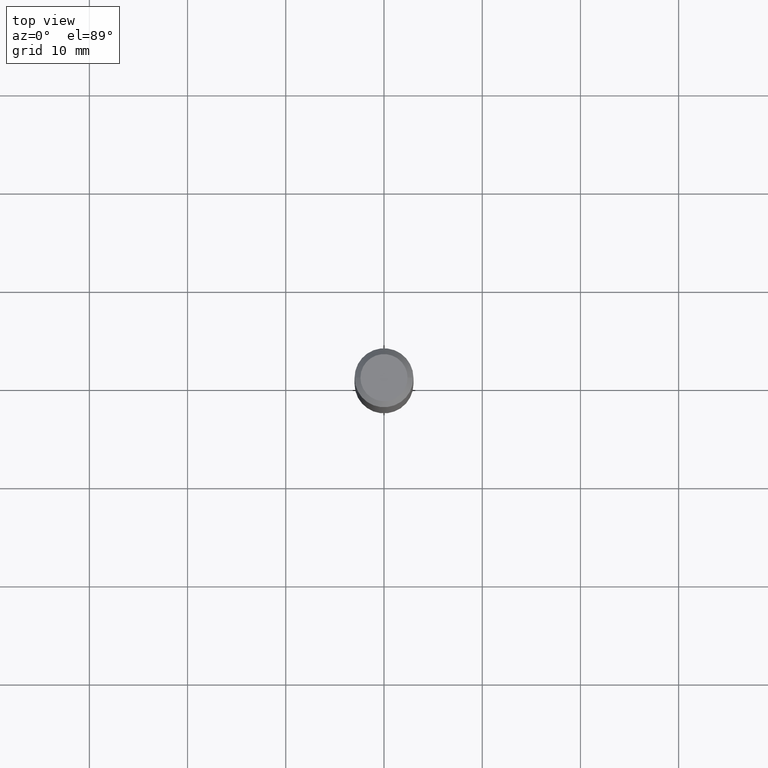
[diagram: clean part render]
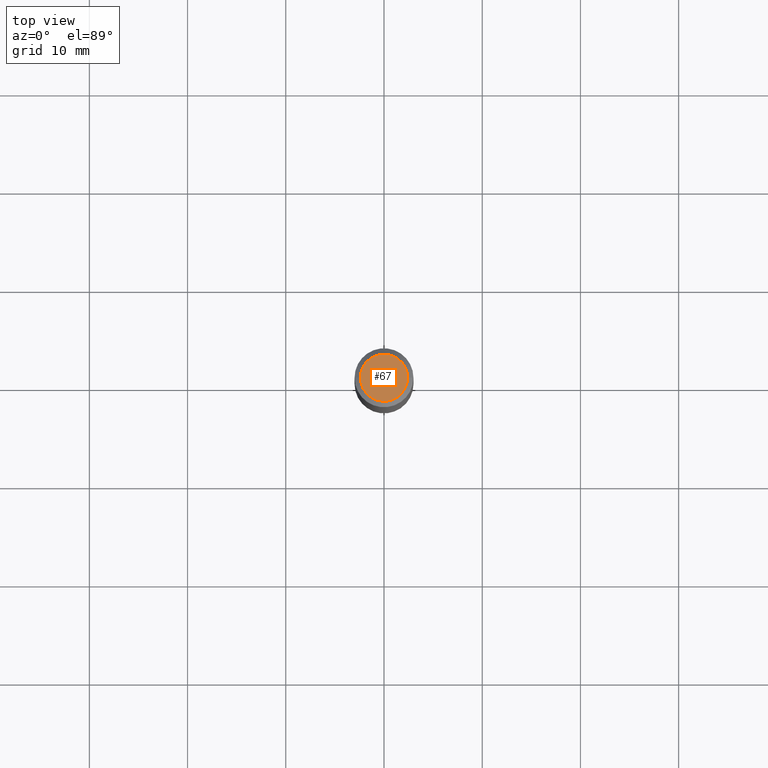
[diagram: same view with one face highlighted and labeled with its STEP entity id]
A machine part, top view. The second image highlights one B-rep face of the part: STEP entity #67.
In plain terms, the highlighted planar face has unit normal (0, -0, -1).
Its self-contained STEP definition (entity closure, byte-faithful):
#26 = DIRECTION ( 'NONE',  ( 1.000000000000000000, -6.982962677686267499E-15, 4.875432709231658792E-29 ) ) ;
#38 = CARTESIAN_POINT ( 'NONE',  ( 4.716267017698007905E-46, -6.733579360998555036E-32, -1.928573779297252010E-17 ) ) ;
#67 = ADVANCED_FACE ( 'NONE', ( #81 ), #228, .F. ) ;
#81 = FACE_OUTER_BOUND ( 'NONE', #257, .T. ) ;
#92 = DIRECTION ( 'NONE',  ( 1.000000000000000000, -6.982962677686267499E-15, 4.875432709231658792E-29 ) ) ;
#96 = CARTESIAN_POINT ( 'NONE',  ( -0.09447999999999998066, 7.009847083995354710E-16, -1.928573779297727792E-17 ) ) ;
#100 = EDGE_CURVE ( 'NONE', #105, #122, #175, .T. ) ;
#102 = ORIENTED_EDGE ( 'NONE', *, *, #287, .T. ) ;
#105 = VERTEX_POINT ( 'NONE', #444 ) ;
#122 = VERTEX_POINT ( 'NONE', #96 ) ;
#175 = CIRCLE ( 'NONE', #448, 0.09447999999999998066 ) ;
#208 = CIRCLE ( 'NONE', #361, 0.09447999999999998066 ) ;
#221 = AXIS2_PLACEMENT_3D ( 'NONE', #424, #242, #244 ) ;
#228 = PLANE ( 'NONE',  #221 ) ;
#242 = DIRECTION ( 'NONE',  ( 2.438088387897960049E-29, -3.491481338843145188E-15, -1.000000000000000000 ) ) ;
#244 = DIRECTION ( 'NONE',  ( -1.000000000000000000, 6.982962677686265922E-15, -4.876176775795935793E-29 ) ) ;
#257 = EDGE_LOOP ( 'NONE', ( #102, #373 ) ) ;
#287 = EDGE_CURVE ( 'NONE', #122, #105, #208, .T. ) ;
#312 = CARTESIAN_POINT ( 'NONE',  ( 4.716267017698007905E-46, -6.733579360998555036E-32, -1.928573779297252010E-17 ) ) ;
#357 = DIRECTION ( 'NONE',  ( -2.445468806185136597E-29, 3.491481338843145583E-15, 1.000000000000000000 ) ) ;
#361 = AXIS2_PLACEMENT_3D ( 'NONE', #38, #357, #26 ) ;
#373 = ORIENTED_EDGE ( 'NONE', *, *, #100, .T. ) ;
#424 = CARTESIAN_POINT ( 'NONE',  ( 2.358133508849003952E-46, -3.366789680499277518E-32, -9.642868896486260050E-18 ) ) ;
#437 = DIRECTION ( 'NONE',  ( -2.445468806185136597E-29, 3.491481338843145583E-15, 1.000000000000000000 ) ) ;
#444 = CARTESIAN_POINT ( 'NONE',  ( 0.09447999999999998066, -7.704367267948738690E-16, -1.928573779296752193E-17 ) ) ;
#448 = AXIS2_PLACEMENT_3D ( 'NONE', #312, #437, #92 ) ;